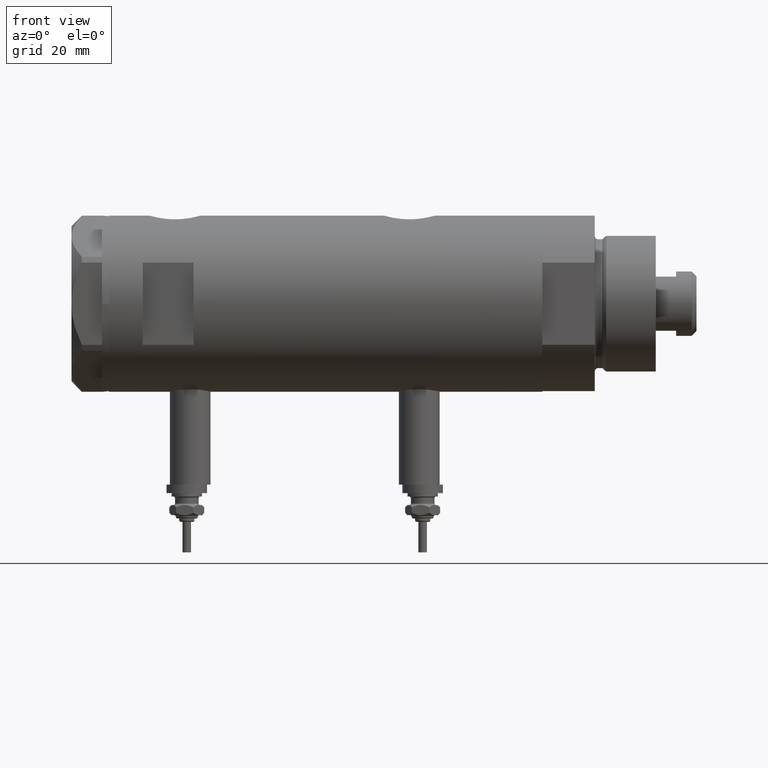
[diagram: clean part render]
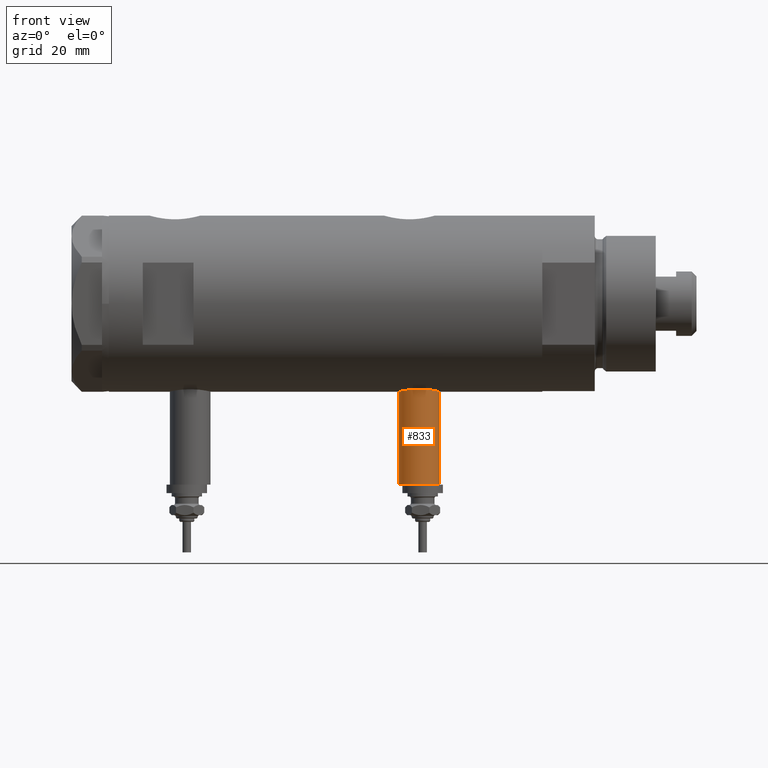
[diagram: same view with one face highlighted and labeled with its STEP entity id]
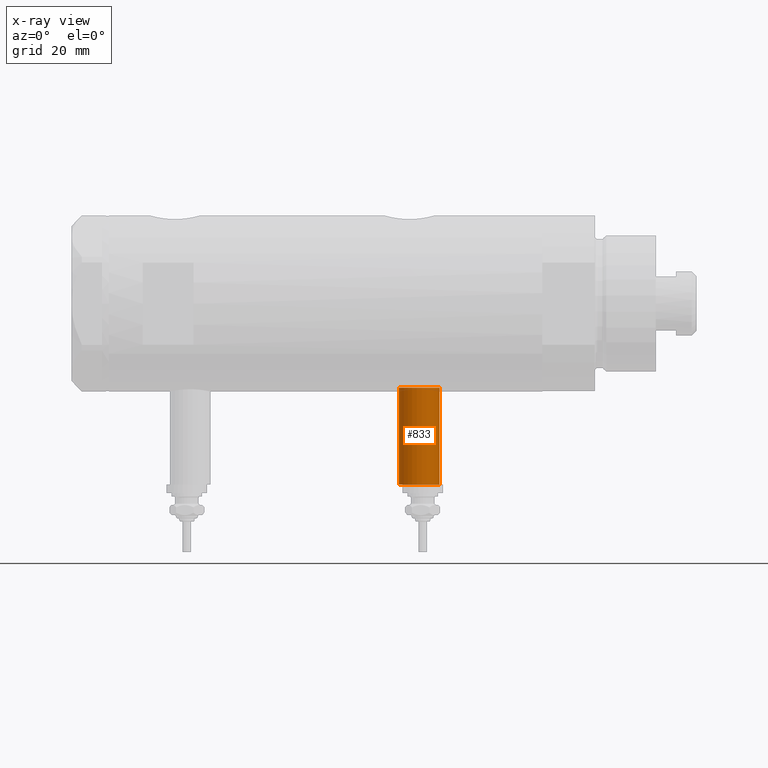
[diagram: x-ray of the same camera — body ghosted, the highlighted face saturated]
A machine part, front view. The second image highlights one B-rep face of the part: STEP entity #833.
The next image is the same camera in x-ray: the body ghosted, the highlighted face saturated — about 0% of this face is hidden behind the body in this view.
In plain terms, the highlighted cylindrical surface (edge-blend (fillet) strip) has radius 6 mm, axis along (0, 0, 1).
Its self-contained STEP definition (entity closure, byte-faithful):
#78 = EDGE_CURVE ( 'NONE', #3726, #349, #5119, .T. ) ;
#194 = DIRECTION ( 'NONE',  ( -1.000000000000000000, 0.000000000000000000, 0.000000000000000000 ) ) ;
#335 = CYLINDRICAL_SURFACE ( 'NONE', #5332, 6.000000000000005329 ) ;
#349 = VERTEX_POINT ( 'NONE', #2303 ) ;
#443 = ORIENTED_EDGE ( 'NONE', *, *, #2734, .T. ) ;
#565 = VECTOR ( 'NONE', #3959, 1000.000000000000000 ) ;
#755 = CIRCLE ( 'NONE', #4119, 6.000000000000001776 ) ;
#833 = ADVANCED_FACE ( 'NONE', ( #2389 ), #335, .T. ) ;
#917 = ORIENTED_EDGE ( 'NONE', *, *, #951, .F. ) ;
#951 = EDGE_CURVE ( 'NONE', #349, #5840, #5441, .T. ) ;
#1564 = CARTESIAN_POINT ( 'NONE',  ( -53.40000000000000568, 0.000000000000000000, -33.65000000000001279 ) ) ;
#1583 = CARTESIAN_POINT ( 'NONE',  ( -53.40000000000000568, 0.000000000000000000, -27.65000000000000924 ) ) ;
#1596 = LINE ( 'NONE', #2023, #565 ) ;
#1719 = CARTESIAN_POINT ( 'NONE',  ( -24.80000000000000426, 0.000000000000000000, -27.65000000000000924 ) ) ;
#2023 = CARTESIAN_POINT ( 'NONE',  ( -53.40000000000000568, 0.000000000000000000, -33.65000000000001279 ) ) ;
#2273 = VECTOR ( 'NONE', #4028, 1000.000000000000000 ) ;
#2292 = DIRECTION ( 'NONE',  ( 1.000000000000000000, -0.000000000000000000, -0.000000000000000000 ) ) ;
#2303 = CARTESIAN_POINT ( 'NONE',  ( -53.40000000000000568, 7.347880794884123680E-16, -21.65000000000000213 ) ) ;
#2348 = CARTESIAN_POINT ( 'NONE',  ( -24.80000000000000426, 0.000000000000000000, -33.65000000000001279 ) ) ;
#2389 = FACE_OUTER_BOUND ( 'NONE', #3588, .T. ) ;
#2668 = CARTESIAN_POINT ( 'NONE',  ( -53.40000000000000568, 7.347880794884122694E-16, -21.65000000000000568 ) ) ;
#2734 = EDGE_CURVE ( 'NONE', #4392, #5840, #755, .T. ) ;
#3280 = AXIS2_PLACEMENT_3D ( 'NONE', #1583, #3951, #5012 ) ;
#3365 = DIRECTION ( 'NONE',  ( 0.000000000000000000, 0.000000000000000000, -1.000000000000000000 ) ) ;
#3588 = EDGE_LOOP ( 'NONE', ( #917, #4105, #4494, #443 ) ) ;
#3726 = VERTEX_POINT ( 'NONE', #1564 ) ;
#3848 = CARTESIAN_POINT ( 'NONE',  ( -53.40000000000000568, 0.000000000000000000, -27.65000000000000924 ) ) ;
#3951 = DIRECTION ( 'NONE',  ( -1.000000000000000000, 0.000000000000000000, 0.000000000000000000 ) ) ;
#3959 = DIRECTION ( 'NONE',  ( 1.000000000000000000, -0.000000000000000000, -0.000000000000000000 ) ) ;
#4028 = DIRECTION ( 'NONE',  ( 1.000000000000000000, -0.000000000000000000, -0.000000000000000000 ) ) ;
#4098 = CARTESIAN_POINT ( 'NONE',  ( -24.80000000000000426, 7.347880794884123680E-16, -21.65000000000000213 ) ) ;
#4105 = ORIENTED_EDGE ( 'NONE', *, *, #78, .F. ) ;
#4119 = AXIS2_PLACEMENT_3D ( 'NONE', #1719, #194, #6033 ) ;
#4392 = VERTEX_POINT ( 'NONE', #2348 ) ;
#4494 = ORIENTED_EDGE ( 'NONE', *, *, #6019, .T. ) ;
#5012 = DIRECTION ( 'NONE',  ( 0.000000000000000000, 0.000000000000000000, 1.000000000000000000 ) ) ;
#5119 = CIRCLE ( 'NONE', #3280, 6.000000000000001776 ) ;
#5332 = AXIS2_PLACEMENT_3D ( 'NONE', #3848, #2292, #3365 ) ;
#5441 = LINE ( 'NONE', #2668, #2273 ) ;
#5840 = VERTEX_POINT ( 'NONE', #4098 ) ;
#6019 = EDGE_CURVE ( 'NONE', #3726, #4392, #1596, .T. ) ;
#6033 = DIRECTION ( 'NONE',  ( 0.000000000000000000, 0.000000000000000000, 1.000000000000000000 ) ) ;